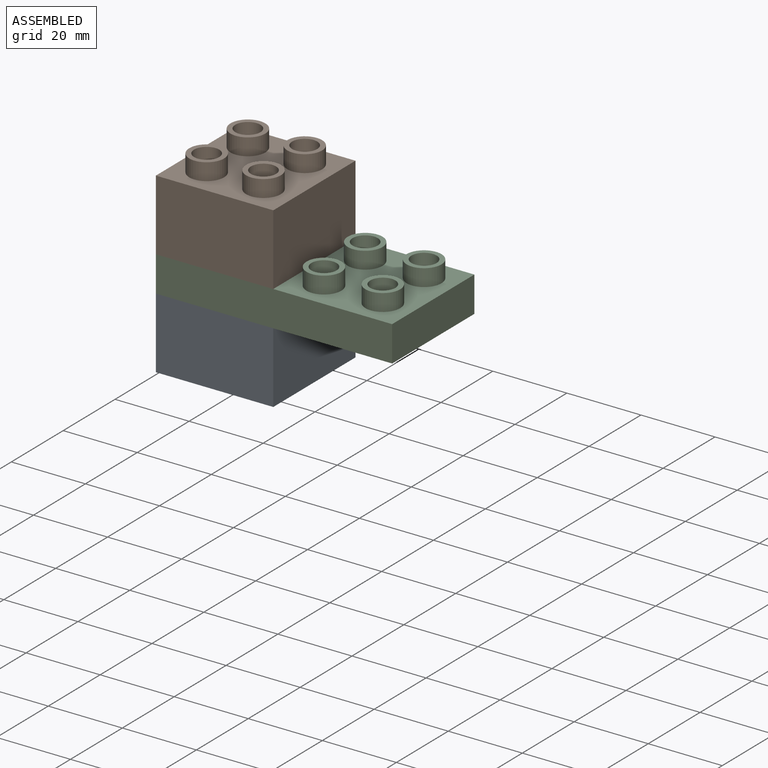
[diagram: assembled view]
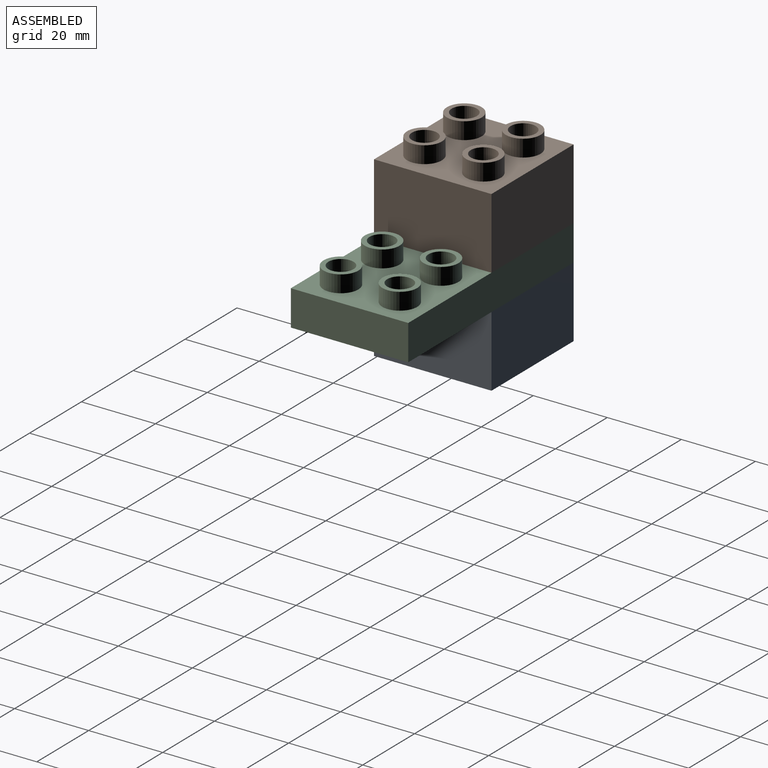
[diagram: assembled view, second angle]
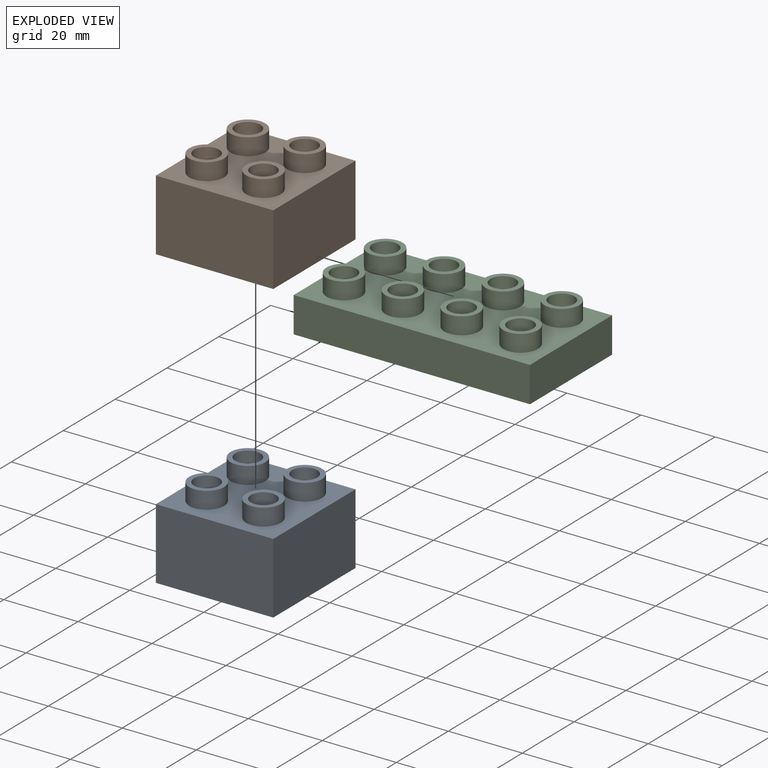
[diagram: exploded view]
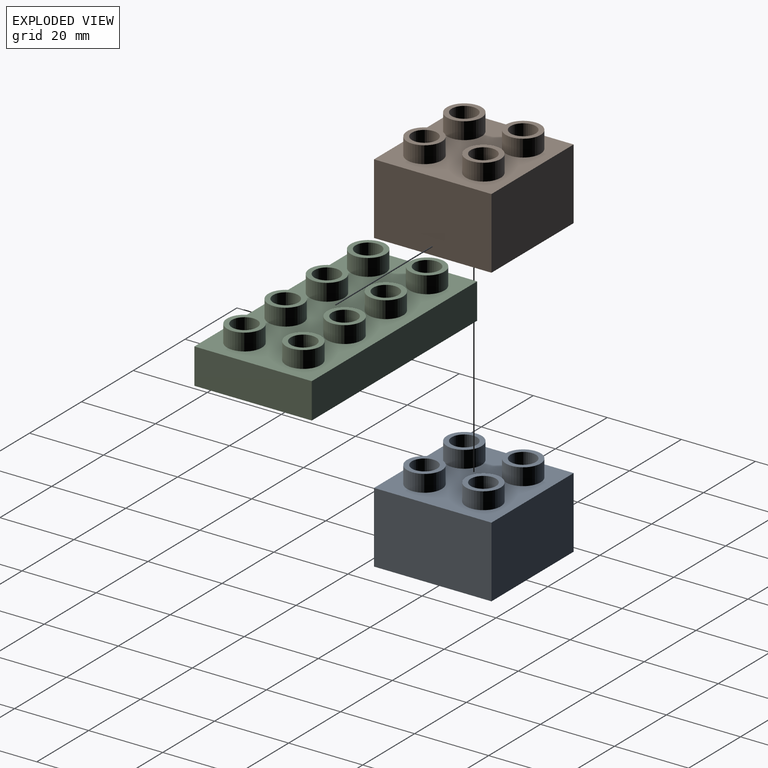
[diagram: exploded view, second angle]
ASSEMBLY  parts=3 mates=2
PART A: 22 faces, bbox 31.7x31.7x23.8 mm
  f0: plane 31.7x19.2mm, normal (-1,0,0), area 608.6mm2, adj f1,f3,f4,f5
  f1: plane 31.7x19.2mm, normal (0,-1,0), area 608.6mm2, adj f0,f2,f4,f5
  f2: plane 31.7x19.2mm, normal (1,0,0), area 608.6mm2, adj f1,f3,f4,f5
  f3: plane 31.7x19.2mm, normal (0,1,0), area 608.6mm2, adj f0,f2,f4,f5
  f4: plane 31.7x31.7mm, normal (0,0,1), area 727.3mm2, adj f0,f1,f2,f3,f7,f10,f14,f19
  f5: plane 31.7x31.7mm, normal (0,0,-1), area 1004.9mm2, adj f0,f1,f2,f3
  f6: cylinder r=3.4mm len=6.8mm, axis (0,0,-1), area 98.3mm2, adj f8,f9
  f7: cylinder r=4.7mm len=9.4mm, axis (0,0,-1), area 135.8mm2, adj f4,f8
  f8: plane 9.4x9.4mm, normal (0,0,1), area 33.1mm2, adj f6,f7
  f9: plane 6.8x6.8mm, normal (0,0,1), area 36.3mm2, adj f6
  f10: cylinder r=4.7mm len=9.4mm, axis (0,0,-1), area 135.8mm2, adj f4,f12
  f11: cylinder r=3.4mm len=6.8mm, axis (0,0,-1), area 98.3mm2, adj f12,f13
  f12: plane 9.4x9.4mm, normal (0,0,1), area 33.1mm2, adj f10,f11
  f13: plane 6.8x6.8mm, normal (0,0,1), area 36.3mm2, adj f11
  f14: cylinder r=4.7mm len=9.4mm, axis (0,0,-1), area 135.8mm2, adj f4,f16
  f15: cylinder r=3.4mm len=6.8mm, axis (0,0,-1), area 98.3mm2, adj f16,f17
  f16: plane 9.4x9.4mm, normal (0,0,1), area 33.1mm2, adj f14,f15
  f17: plane 6.8x6.8mm, normal (0,0,1), area 36.3mm2, adj f15
  f18: cylinder r=3.4mm len=6.8mm, axis (0,0,-1), area 98.3mm2, adj f20,f21
  f19: cylinder r=4.7mm len=9.4mm, axis (0,0,-1), area 135.8mm2, adj f4,f20
  f20: plane 9.4x9.4mm, normal (0,0,1), area 33.1mm2, adj f18,f19
  f21: plane 6.8x6.8mm, normal (0,0,1), area 36.3mm2, adj f18
PART B: same geometry as A
PART C: 38 faces, bbox 63.8x31.7x14.2 mm
  f0: plane 31.7x9.6mm, normal (-1,0,0), area 304.3mm2, adj f1,f3,f4,f5
  f1: plane 63.8x9.6mm, normal (0,-1,0), area 612.5mm2, adj f0,f2,f4,f5
  f2: plane 31.7x9.6mm, normal (1,0,0), area 304.3mm2, adj f1,f3,f4,f5
  f3: plane 63.8x9.6mm, normal (0,1,0), area 612.5mm2, adj f0,f2,f4,f5
  f4: plane 63.8x31.7mm, normal (0,0,1), area 1467.3mm2, adj f0,f1,f2,f3,f7,f11,f15,f19
  f5: plane 63.8x31.7mm, normal (0,0,-1), area 2022.5mm2, adj f0,f1,f2,f3
  f6: cylinder r=3.4mm len=6.8mm, axis (0,0,-1), area 98.3mm2, adj f8,f9
  f7: cylinder r=4.7mm len=9.4mm, axis (0,0,-1), area 135.8mm2, adj f4,f8
  f8: plane 9.4x9.4mm, normal (0,0,1), area 33.1mm2, adj f6,f7
  f9: plane 6.8x6.8mm, normal (0,0,1), area 36.3mm2, adj f6
  f10: cylinder r=3.4mm len=6.8mm, axis (0,0,-1), area 98.3mm2, adj f12,f13
  f11: cylinder r=4.7mm len=9.4mm, axis (0,0,-1), area 135.8mm2, adj f4,f12
  f12: plane 9.4x9.4mm, normal (0,0,1), area 33.1mm2, adj f10,f11
  f13: plane 6.8x6.8mm, normal (0,0,1), area 36.3mm2, adj f10
  f14: cylinder r=3.4mm len=6.8mm, axis (0,0,-1), area 98.3mm2, adj f16,f17
  f15: cylinder r=4.7mm len=9.4mm, axis (0,0,-1), area 135.8mm2, adj f4,f16
  f16: plane 9.4x9.4mm, normal (0,0,1), area 33.1mm2, adj f14,f15
  f17: plane 6.8x6.8mm, normal (0,0,1), area 36.3mm2, adj f14
  f18: cylinder r=3.4mm len=6.8mm, axis (0,0,-1), area 98.3mm2, adj f20,f21
  f19: cylinder r=4.7mm len=9.4mm, axis (0,0,-1), area 135.8mm2, adj f4,f20
  f20: plane 9.4x9.4mm, normal (0,0,1), area 33.1mm2, adj f18,f19
  f21: plane 6.8x6.8mm, normal (0,0,1), area 36.3mm2, adj f18
  f22: cylinder r=4.7mm len=9.4mm, axis (0,0,-1), area 135.8mm2, adj f4,f24
  f23: cylinder r=3.4mm len=6.8mm, axis (0,0,-1), area 98.3mm2, adj f24,f25
  f24: plane 9.4x9.4mm, normal (0,0,1), area 33.1mm2, adj f22,f23
  f25: plane 6.8x6.8mm, normal (0,0,1), area 36.3mm2, adj f23
  f26: cylinder r=4.7mm len=9.4mm, axis (0,0,-1), area 135.8mm2, adj f4,f28
  f27: cylinder r=3.4mm len=6.8mm, axis (0,0,-1), area 98.3mm2, adj f28,f29
  f28: plane 9.4x9.4mm, normal (0,0,1), area 33.1mm2, adj f26,f27
  f29: plane 6.8x6.8mm, normal (0,0,1), area 36.3mm2, adj f27
  f30: cylinder r=4.7mm len=9.4mm, axis (0,0,-1), area 135.8mm2, adj f4,f32
  f31: cylinder r=3.4mm len=6.8mm, axis (0,0,-1), area 98.3mm2, adj f32,f33
  f32: plane 9.4x9.4mm, normal (0,0,1), area 33.1mm2, adj f30,f31
  f33: plane 6.8x6.8mm, normal (0,0,1), area 36.3mm2, adj f31
  f34: cylinder r=4.7mm len=9.4mm, axis (0,0,-1), area 135.8mm2, adj f4,f36
  f35: cylinder r=3.4mm len=6.8mm, axis (0,0,-1), area 98.3mm2, adj f36,f37
  f36: plane 9.4x9.4mm, normal (0,0,1), area 33.1mm2, adj f34,f35
  f37: plane 6.8x6.8mm, normal (0,0,1), area 36.3mm2, adj f35
PLACE A at identity
PLACE B t=(0,0,28.8)mm
PLACE C t=(16.05,0,19.2)mm
MATE fastened A.f4 <-> C.f5  axis (0,0,1) through (-15.85,0,19.2)mm
MATE fastened C.f4 <-> B.f5  axis (0,0,1) through (-15.85,0,28.8)mm
